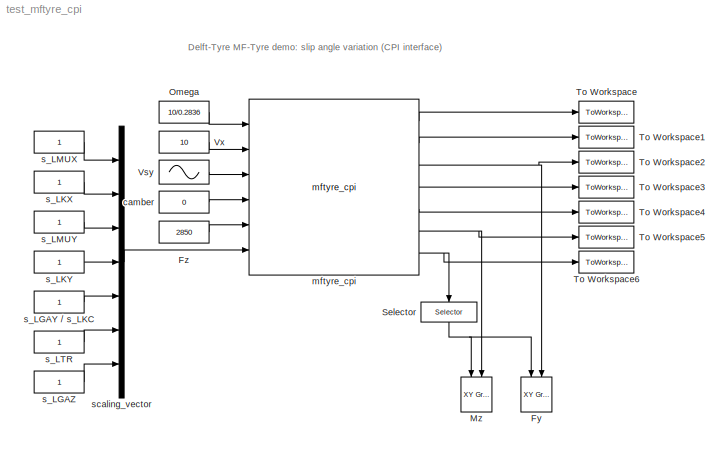
MODEL test_mftyre_cpi
KIND model
CONFIG AbsTol = 1e-5
CONFIG FixedStep = 0.02
CONFIG MaxStep = 0.02
CONFIG MinStep = auto
CONFIG RelTol = 1e-5
CONFIG Solver = ode4
CONFIG SolverMode = SingleTasking
CONFIG StartTime = 0.0
CONFIG StopTime = 2*pi
BLOCK [Reference] Fy  REF=simulink3/Sinks/XY Graph
  Ports = [2]
  SourceBlock = simulink3/Sinks/XY Graph
  SourceType = XY scope.
  st = -1
  xmax = 0.3
  xmin = -0.3
  ymax = 3500
  ymin = -3500
BLOCK [Constant] Fz
  Value = 2850
  VectorParams1D = on
BLOCK [Reference] Mz  REF=simulink3/Sinks/XY Graph
  Ports = [2]
  SourceBlock = simulink3/Sinks/XY Graph
  SourceType = XY scope.
  st = -1
  xmax = 0.3
  xmin = -0.3
  ymax = 50
  ymin = -50
BLOCK [Constant] Omega
  Value = 10/0.2836
  VectorParams1D = on
BLOCK [Selector] Selector
  ColumnSrc = Internal
  Columns = 1
  ElementSrc = Internal
  Elements = 1
  InputPortWidth = 40
  InputType = Vector
  Ports = [1, 1]
  RowSrc = Internal
  Rows = 1
BLOCK [ToWorkspace] To Workspace
  Decimation = 1
  MaxDataPoints = inf
  SampleTime = -1
  SaveFormat = Array
  VariableName = My_wheel
BLOCK [ToWorkspace] To Workspace1
  Decimation = 1
  MaxDataPoints = inf
  SampleTime = -1
  SaveFormat = Array
  VariableName = Fx
BLOCK [ToWorkspace] To Workspace2
  Decimation = 1
  MaxDataPoints = inf
  SampleTime = -1
  SaveFormat = Array
  VariableName = Fy
BLOCK [ToWorkspace] To Workspace3
  Decimation = 1
  MaxDataPoints = inf
  SampleTime = -1
  SaveFormat = Array
  VariableName = Mx
BLOCK [ToWorkspace] To Workspace4
  Decimation = 1
  MaxDataPoints = inf
  SampleTime = -1
  SaveFormat = Array
  VariableName = My
BLOCK [ToWorkspace] To Workspace5
  Decimation = 1
  MaxDataPoints = inf
  SampleTime = -1
  SaveFormat = Array
  VariableName = Mz
BLOCK [ToWorkspace] To Workspace6
  Decimation = 1
  MaxDataPoints = inf
  SampleTime = -1
  SaveFormat = Array
  VariableName = varinf
BLOCK [Sin] Vsy
  Amplitude = 5
  Bias = 0
  Frequency = 1
  Offset = 0
  Phase = 0
  SampleTime = 0
  Samples = 10
  SineType = Time-based
  VectorParams1D = on
BLOCK [Constant] Vx
  Value = 10
  VectorParams1D = on
BLOCK [Constant] camber
  Value = 0
  VectorParams1D = on
BLOCK [Reference] mftyre_cpi  REF=dtlib/mftyre_cpi  (lib defined in mdl_8cef2accd2ac)
  Ports = [6, 7]
  SourceBlock = dtlib/mftyre_cpi
  SourceType = MFTYRE_CPI
  idtyre = 1
  typarr = mfread('mft_car175_70R13.tir')
  use_mode = 4
BLOCK [Constant] s_LGAY // s_LKC
  Value = 1
  VectorParams1D = on
BLOCK [Constant] s_LGAZ
  Value = 1
  VectorParams1D = on
BLOCK [Constant] s_LKX
  Value = 1
  VectorParams1D = on
BLOCK [Constant] s_LKY
  Value = 1
  VectorParams1D = on
BLOCK [Constant] s_LMUX
  Value = 1
  VectorParams1D = on
BLOCK [Constant] s_LMUY
  Value = 1
  VectorParams1D = on
BLOCK [Constant] s_LTR
  Value = 1
  VectorParams1D = on
BLOCK [Mux] scaling_vector
  DisplayOption = bar
  Inputs = 7
  Ports = [7, 1]
LINE Fz:1 -> mftyre_cpi:5
LINE Omega:1 -> mftyre_cpi:1
NET Selector:1 -> Fy:1, Mz:1
LINE Vsy:1 -> mftyre_cpi:3
LINE Vx:1 -> mftyre_cpi:2
LINE camber:1 -> mftyre_cpi:4
LINE mftyre_cpi:1 -> To Workspace:1
LINE mftyre_cpi:2 -> To Workspace1:1
NET mftyre_cpi:3 -> Fy:2, To Workspace2:1
LINE mftyre_cpi:4 -> To Workspace3:1
LINE mftyre_cpi:5 -> To Workspace4:1
NET mftyre_cpi:6 -> Mz:2, To Workspace5:1
NET mftyre_cpi:7 -> Selector:1, To Workspace6:1
LINE s_LGAY // s_LKC:1 -> scaling_vector:5
LINE s_LGAZ:1 -> scaling_vector:7
LINE s_LKX:1 -> scaling_vector:2
LINE s_LKY:1 -> scaling_vector:4
LINE s_LMUX:1 -> scaling_vector:1
LINE s_LMUY:1 -> scaling_vector:3
LINE s_LTR:1 -> scaling_vector:6
LINE scaling_vector:1 -> mftyre_cpi:6
note: NET lines group one-source signal fan-out (src -> all destinations, sorted); 1:1 wires keep LINE
